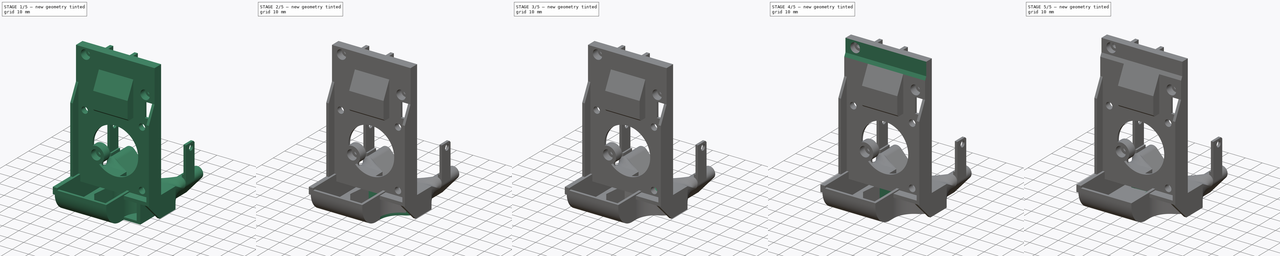
[diagram: build sequence overview — one tinted view per stage of 5, left to right]
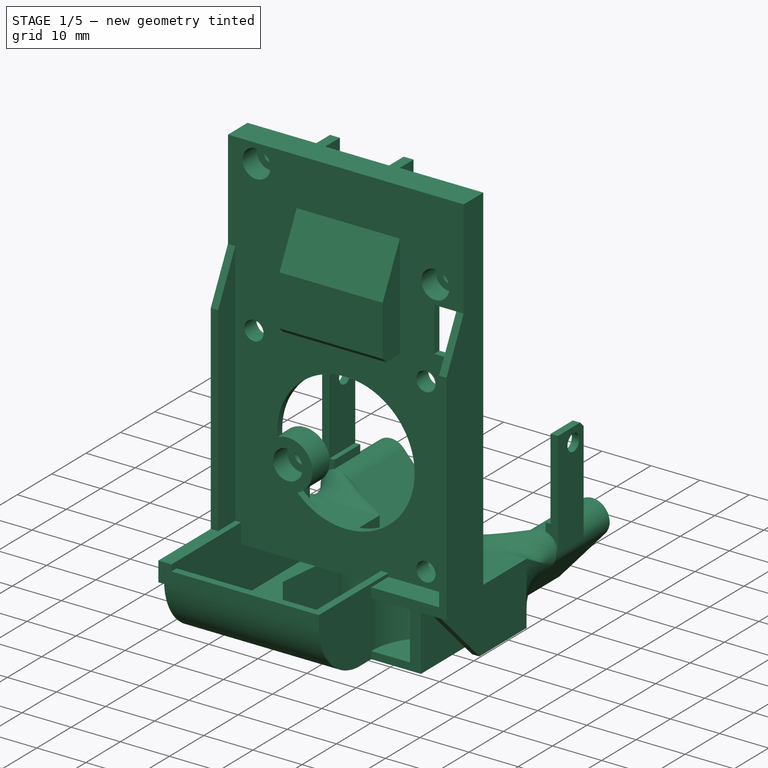
[diagram: stage 1 of 5 — iso view after this stage's code; geometry added in this stage tinted green]
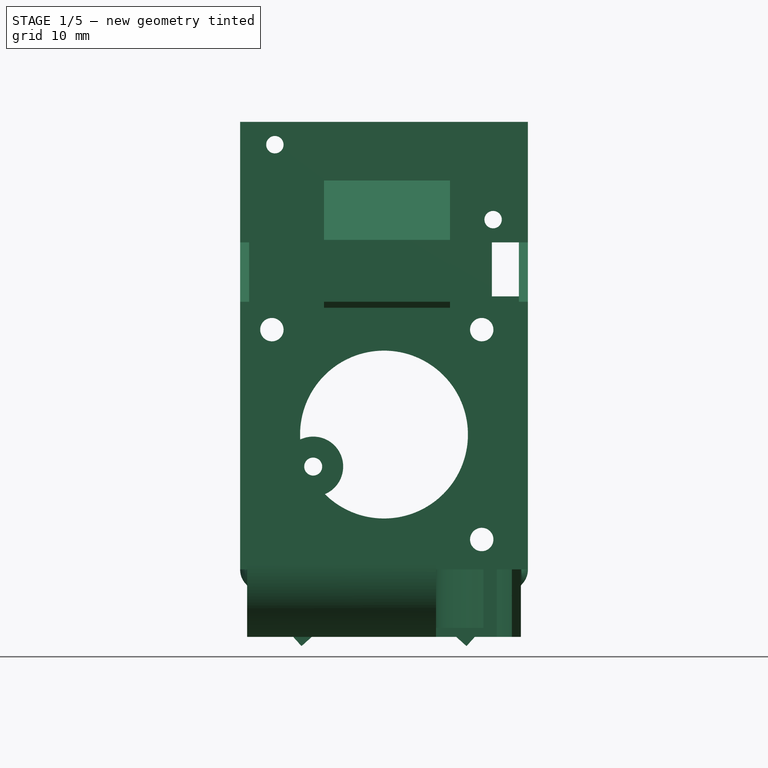
[diagram: stage 1 of 5 — front view after this stage's code; geometry added in this stage tinted green]
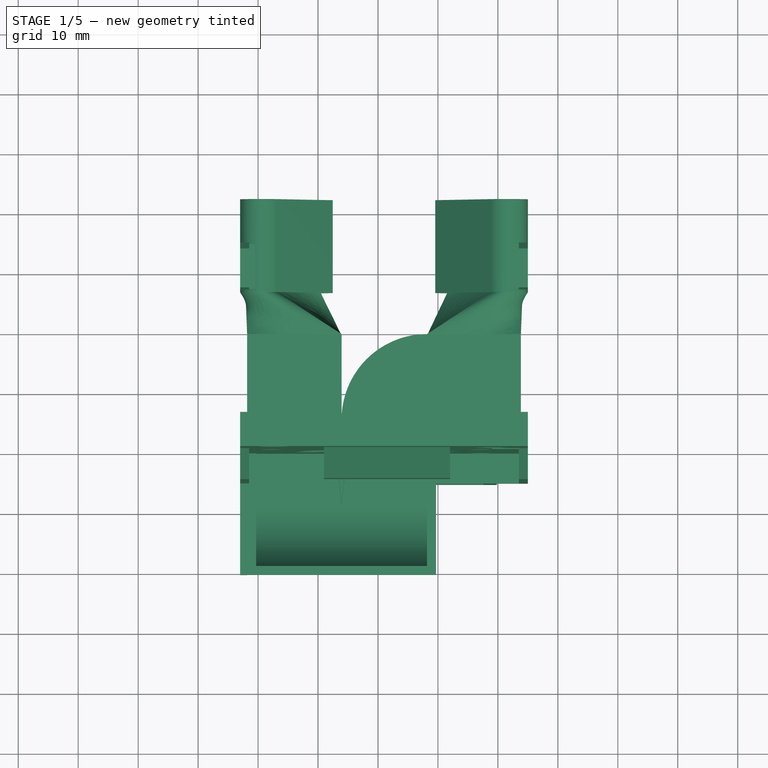
[diagram: stage 1 of 5 — top view after this stage's code; geometry added in this stage tinted green]
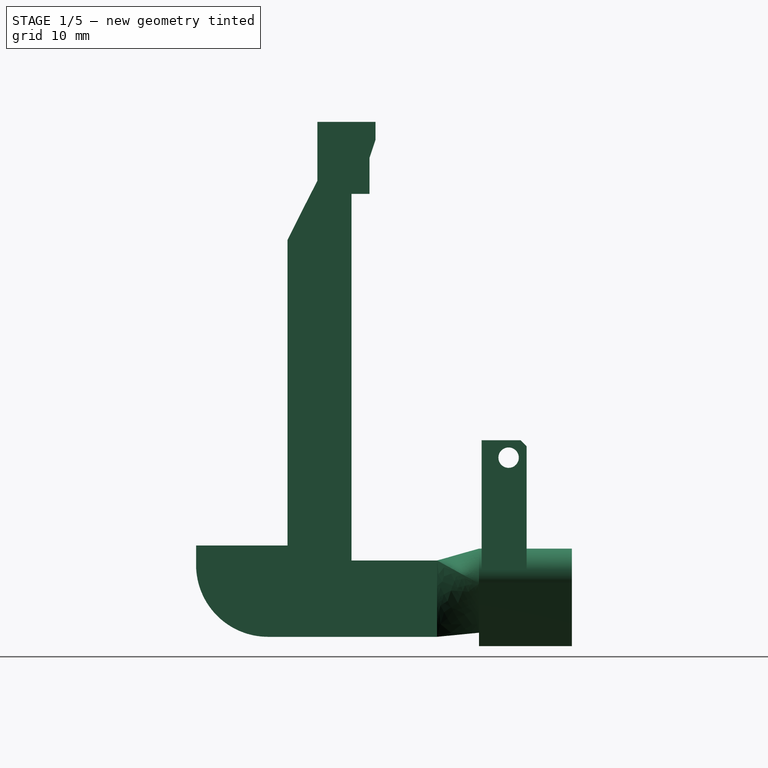
[diagram: stage 1 of 5 — right view after this stage's code; geometry added in this stage tinted green]
FCSTD DOCUMENT  (FreeCAD 1.0R38641 +678 (Git))
Label: k1_toolhead_cover_experimental
License: All rights reserved
LicenseURL: https://en.wikipedia.org/wiki/All_rights_reserved
objects: Part::Feature×14, Sketcher::SketchObject×14, PartDesign::Pocket×9, PartDesign::Pad×7, App::Part×4, App::Link×2, PartDesign::Plane×2, PartDesign::Groove×2, PartDesign::FeatureBase×1, PartDesign::Body×1
note: 101 computed .brp shape members not serialized (recipe doc carries the construction recipe); baked Part::Feature solids carry a one-line shape summary decoded from their .brp
EXTERNAL_REF file=cad_4020.FCStd obj=Blower_Fan_4020_v019
EXTERNAL_REF file=k1_toolhead_cover_experimental_spacer.FCStd obj=Body

FEATURE [App::Link] Link  label="cad_4020_link"
  LinkPlacement = pos=(371.3,113.73,-351) rot=(0,0,1;1.5708rad)
  LinkedObject = -> <external cad_4020.FCStd>#Blower_Fan_4020_v019
  Placement = pos=(371.3,113.73,-351) rot=(0,0,1;1.5708rad)
FEATURE [Part::Feature] Part__Feature001  label="k1_toolhead_step"
  Placement = pos=(351.004,148.694,-103.351) rot=(0,0,1;4.71239rad)
  shape: bbox 48.4 x 62.42 x 81 mm, 177 faces (baked)
FEATURE [Part::Feature] Part__Feature002  label="ceramic-heater-mount"
  Placement = pos=(1.01e-14,1.7e-15,-0.35) rot=(0,0,1;0rad)
  shape: bbox 16.2 x 20.39 x 5.326 mm, 102 faces (baked)
FEATURE [Part::Feature] Part__Feature003  label="ceramic-heater-main-body"
  Placement = pos=(31.1686,0.4,-0.35) rot=(0,0,1;3.14159rad)
  shape: bbox 13.01 x 12.18 x 20.65 mm, 86 faces (baked)
FEATURE [Part::Feature] Part__Feature004  label="ceramic-heater-ring"
  Placement = pos=(31.1686,0.4,-0.35) rot=(0,0,1;3.14159rad)
  shape: bbox 10 x 10 x 11 mm, 4 faces (baked)
FEATURE [App::Part] ceramic_heater  label="ceramic-heater"
  Group = -> [Part__Feature002,Part__Feature003,Part__Feature004]
  Origin = -> Origin002
FEATURE [Part::Feature] Part__Feature005  label="Silicone Socks"
  Placement = pos=(1.46e-14,2.2e-15,-0.35) rot=(0,0,1;0rad)
  shape: bbox 16.92 x 23.52 x 25.39 mm, 160 faces (baked)
FEATURE [Part::Feature] Part__Feature006  label="K1-nozzle"
  Placement = pos=(29.1807,-7.41895,-0.35) rot=(0,0,1;2.61799rad)
  shape: bbox 6.934 x 6.935 x 23.33 mm, 62 faces (baked)
FEATURE [Part::Feature] Part__Feature007  label="Heat-brake"
  Placement = pos=(0.0767342,-1.3575,-0.35) rot=(0,0,1;0.087266rad)
  shape: bbox 6.921 x 6.922 x 19.53 mm, 29 faces (baked)
FEATURE [Part::Feature] Part__Feature008  label="M2 x 22 mm SBHC"
  Placement = pos=(15.5843,7.2,9.9) rot=(1,0,0;3.14159rad)
  shape: bbox 3.8 x 3.8 x 24 mm, 21 faces (baked)
FEATURE [Part::Feature] Part__Feature009  label="M2 x 22 mm SBHC001"
  Placement = pos=(15.5843,-6.8,9.9) rot=(1,0,0;3.14159rad)
  shape: bbox 3.8 x 3.8 x 24 mm, 21 faces (baked)
FEATURE [Part::Feature] Part__Feature010  label="PTFE tubes"
  shape: bbox 4 x 4 x 13 mm, 4 faces (baked)
FEATURE [Part::Feature] Part__Feature011  label="PTFE tubes001"
  shape: bbox 4 x 4 x 13 mm, 4 faces (baked)
FEATURE [App::Part] PTFE_tubes002  label="PTFE tubes002"
  Group = -> [Part__Feature010,Part__Feature011]
  Origin = -> Origin003
FEATURE [Part::Feature] Part__Feature012  label="M4 x 4mm grub screw"
  Placement = pos=(10.6102,0.2,8.11667) rot=(0,0,1;3.14159rad)
  shape: bbox 4 x 4 x 4 mm, 18 faces (baked)
FEATURE [Part::Feature] Part__Feature013  label="SOLID"
  shape: bbox 21 x 27.8 x 24.1 mm, 230 faces (baked)
FEATURE [App::Part] cad_hotend  label="cad hotend_link"
  Group = -> [ceramic_heater,Part__Feature005,Part__Feature006,Part__Feature007,Part__Feature008,Part__Feature009,PTFE_tubes002,Part__Feature012,Part__Feature013]
  Origin = -> Origin004
  Placement = pos=(350.804,148.678,-103.401) rot=(0,0,1;4.71239rad)
FEATURE [Part::Feature] Part__Feature  label="step"
  shape: bbox 48.7 x 62.72 x 87.43 mm, 165 faces (baked)
FEATURE [PartDesign::FeatureBase] BaseFeature
  BaseFeature = -> Part__Feature
  Suppressed = false
FEATURE [Sketcher::SketchObject] Sketch
  ArcFitTolerance = 1e-06
  AttachmentSupport = -> [BaseFeature]
  ExternalGeometry = -> [BaseFeature]
  FullyConstrained = true
  MakeInternals = false
  MapMode = 5
  Placement = pos=(-1.13443e-11,1.4794e-12,-1.23535) rot=(1,0,0;3.14159rad)
  sketch-geometry (4):
    g0: LineSegment StartX=272.338 StartY=-64.8746 StartZ=0 EndX=258.183 EndY=-64.8746 EndZ=0
    g1: LineSegment StartX=258.183 StartY=-64.8746 StartZ=0 EndX=258.183 EndY=-78.3846 EndZ=0
    g2: LineSegment StartX=258.183 StartY=-78.3846 StartZ=0 EndX=272.338 EndY=-78.3846 EndZ=0
    g3: LineSegment StartX=272.338 StartY=-78.3846 StartZ=0 EndX=272.338 EndY=-64.8746 EndZ=0
  constraints (11):
    c: Coincident(g0,g1)
    c: Coincident(g1,g2)
    c: Coincident(g2,g3)
    c: Coincident(g3,g0)
    c: Horizontal(g0)
    c: Horizontal(g2)
    c: Vertical(g1)
    c: Vertical(g3)
    c: Coincident(g0,g-3)
    c: Distance(g-3,g0) = 1.5
    c: Distance(g3,g3) = 13.51
FEATURE [PartDesign::Pocket] Pocket
  BaseFeature = -> BaseFeature
  Direction = (9.1831e-12,-1.1975e-12,1)
  Length = 0
  Length2 = 5
  Profile = -> Sketch
  ReferenceAxis = -> Sketch [N_Axis]
  Refine = true
  Suppressed = false
  Type = 3
  UpToFace = -> BaseFeature [Face125]
FEATURE [PartDesign::Pad] Pad
  BaseFeature = -> Pocket
  Direction = (0,-1,-1.1975e-12)
  Length = 10
  Length2 = 10
  Profile = -> Pocket [Face85]
  Refine = true
  Suppressed = false
  Type = 3
  UpToFace = -> Pocket [Face83]
FEATURE [Sketcher::SketchObject] Sketch001
  ArcFitTolerance = 1e-06
  AttachmentSupport = -> [Pad]
  ExternalGeometry = -> [Pad]
  FullyConstrained = true
  MakeInternals = false
  MapMode = 5
  Placement = pos=(-1.12613e-11,1.2372e-12,-1.23535) rot=(1,0,0;3.14159rad)
  sketch-geometry (6):
    g0: ArcOfCircle CenterX=271.921 CenterY=-64.8746 CenterZ=0 NormalX=0 NormalY=0 NormalZ=1 AngleXU=0 Radius=12.2386 StartAngle=3.14159 EndAngle=4.22794
    g1: ArcOfCircle CenterX=259.583 CenterY=-88.3196 CenterZ=0 NormalX=0 NormalY=0 NormalZ=1 AngleXU=0 Radius=14.255 StartAngle=0.771133 EndAngle=1.08635
    g2: LineSegment StartX=259.683 StartY=-64.8746 StartZ=0 EndX=258.183 EndY=-64.8746 EndZ=0
    g3: LineSegment StartX=269.805 StartY=-78.3846 StartZ=0 EndX=268.729 EndY=-79.4301 EndZ=0
    g4: ArcOfCircle CenterX=271.921 CenterY=-64.8746 CenterZ=0 NormalX=0 NormalY=0 NormalZ=1 AngleXU=0 Radius=13.7386 StartAngle=3.14159 EndAngle=4.22794
    g5: ArcOfCircle CenterX=259.583 CenterY=-88.3196 CenterZ=0 NormalX=0 NormalY=0 NormalZ=1 AngleXU=0 Radius=12.755 StartAngle=0.771133 EndAngle=1.08635
  constraints (15):
    c: Coincident(g0,g-4)
    c: Tangent(g0,g-3) = 1.5708
    c: Coincident(g1,g-3)
    c: Tangent(g1,g0) = 1.5708
    c: Coincident(g2,g0)
    c: Horizontal(g2)
    c: Coincident(g3,g1)
    c: Perpendicular(g1,g3)
    c: Coincident(g4,g0)
    c: Coincident(g4,g2)
    c: Coincident(g5,g1)
    c: Coincident(g5,g3)
    c: Equal(g2,g3)
    c: Tangent(g5,g4) = 1.5708
    c: Distance(g2,g2) = 1.5
FEATURE [PartDesign::Pad] Pad001
  BaseFeature = -> Pad
  Direction = (-9.1158e-12,1.0015e-12,-1)
  Length = 10
  Length2 = 10
  Profile = -> Sketch001
  ReferenceAxis = -> Sketch001 [N_Axis]
  Refine = true
  Suppressed = false
  Type = 3
  UpToFace = -> Pad [Face55]
FEATURE [PartDesign::Body] Body  label="k1_toolhead_cover_experimental"
  AllowCompound = false
  BaseFeature = -> Part__Feature
  Group = -> [BaseFeature,Sketch,Pocket,Pad,Sketch001,Pad001,Sketch002,Pocket001,Sketch003,Pocket002,Sketch004,Pad002,Pad003,Pad004,DatumPlane,Pad005,Sketch005,Groove,Sketch006,Groove001,Pocket003,Sketch007,Pocket004,Sketch008,DatumPlane001,Sketch009,Pad006,Sketch010,Pocket005,Sketch011,Pocket006,Sketch012,Pocket007,Sketch013,Pocket008]
  Origin = -> Origin
  Tip = -> Pocket008
FEATURE [App::Part] Part  label="k1_toolhead_cover_experimental_part"
  Group = -> [Link,Part__Feature,Body,Link001]
  Origin = -> Origin001
  Placement = pos=(99.8016,29.1291,-123.001) rot=(0,0,1;0rad)

RESOLVED EXTERNAL PARTS (link-assembly join: the EXTERNAL_REF files above that resolve inside this repo's crawl, each included once):
---- part k1_toolhead_cover_experimental_spacer.FCStd = doc fcstd_321ecb824873 ----
FCSTD DOCUMENT  (FreeCAD 1.0R38641 +468 (Git))
Label: k1_toolhead_cover_experimental_spacer
License: All rights reserved
LicenseURL: https://en.wikipedia.org/wiki/All_rights_reserved
objects: Sketcher::SketchObject×1, PartDesign::Pad×1, PartDesign::Body×1
note: 6 computed .brp shape members not serialized (recipe doc carries the construction recipe); baked Part::Feature solids carry a one-line shape summary decoded from their .brp

FEATURE [Sketcher::SketchObject] Sketch
  ArcFitTolerance = 1e-06
  AttachmentSupport = -> [XY_Plane]
  FullyConstrained = true
  MakeInternals = false
  MapMode = 5
  sketch-geometry (2):
    g0: Circle CenterX=0 CenterY=0 CenterZ=0 NormalX=0 NormalY=0 NormalZ=1 AngleXU=0 Radius=1.55
    g1: Circle CenterX=0 CenterY=0 CenterZ=0 NormalX=0 NormalY=0 NormalZ=1 AngleXU=0 Radius=2.75
  constraints (4):
    c: Coincident(g0,g-1)
    c: Coincident(g1,g0)
    c: Diameter(g0) = 3.1
    c: Diameter(g1) = 5.5
FEATURE [PartDesign::Pad] Pad
  Direction = (0,0,1)
  Length = 9
  Length2 = 10
  Profile = -> Sketch
  ReferenceAxis = -> Sketch [N_Axis]
  Refine = true
  Suppressed = false
  Type = 0
FEATURE [PartDesign::Body] Body  label="k1_toolhead_cover_experimental_spacer"
  AllowCompound = false
  Group = -> [Sketch,Pad]
  Origin = -> Origin
  Tip = -> Pad
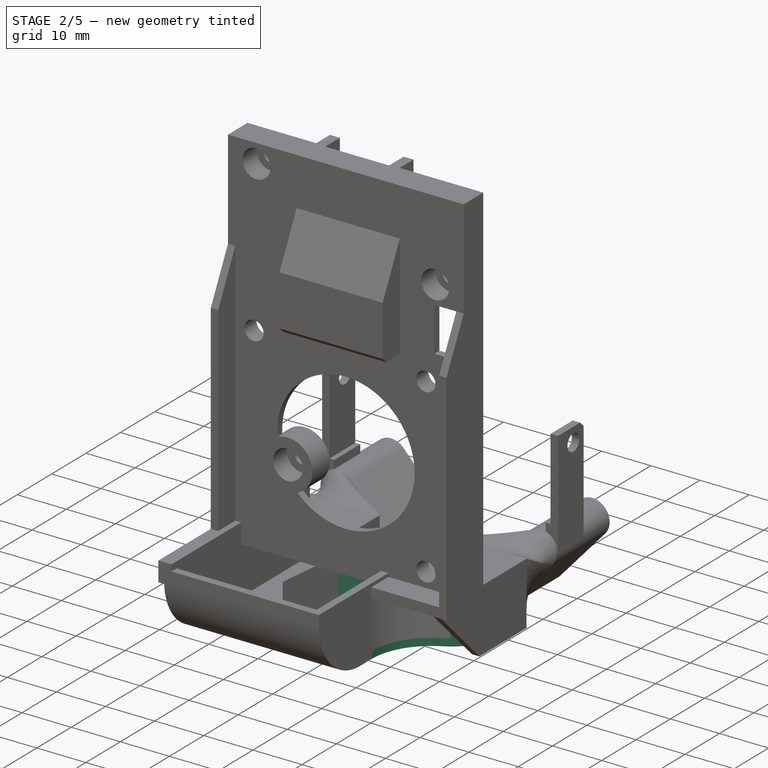
[diagram: stage 2 of 5 — iso view after this stage's code; geometry added in this stage tinted green]
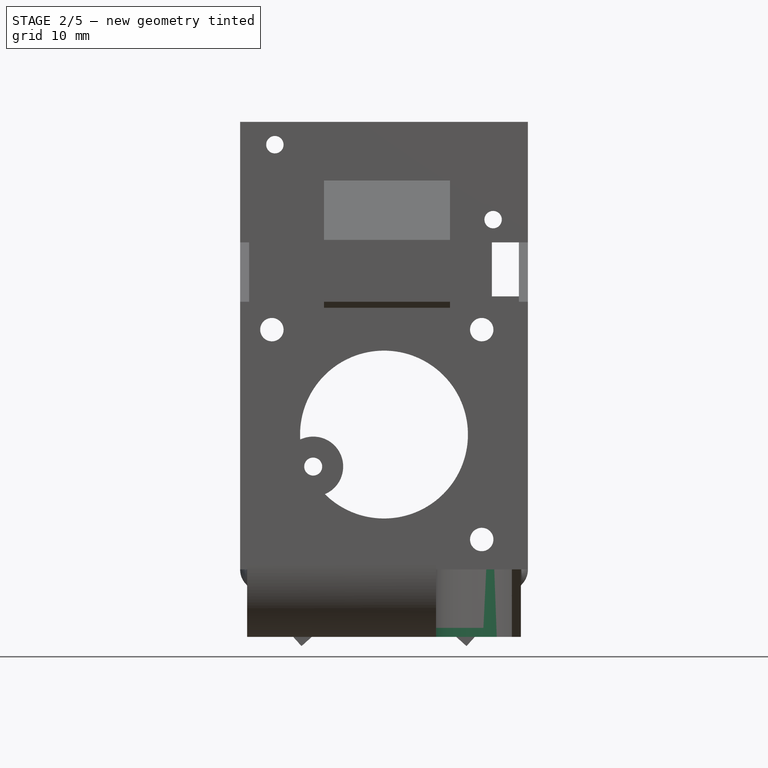
[diagram: stage 2 of 5 — front view after this stage's code; geometry added in this stage tinted green]
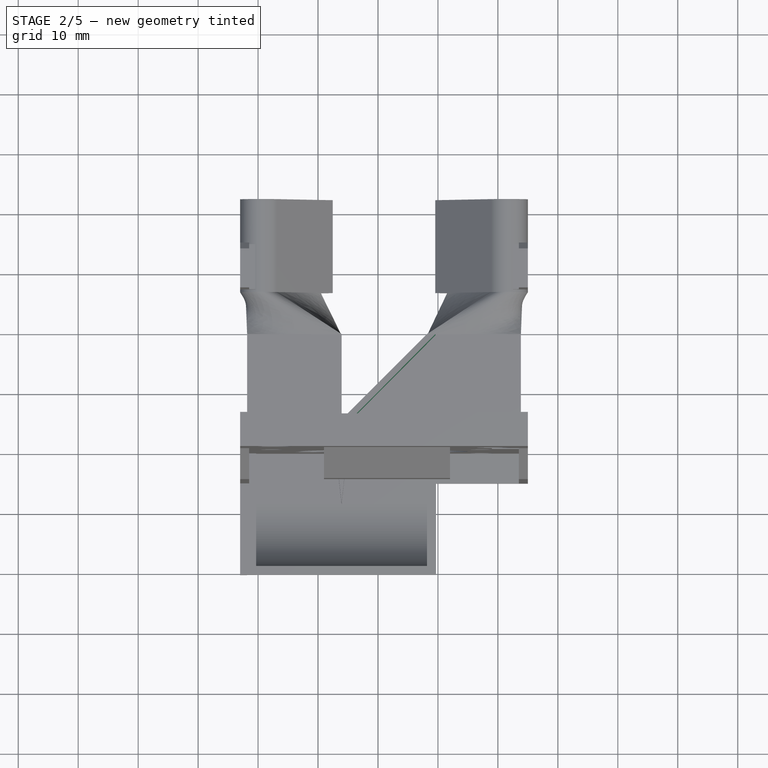
[diagram: stage 2 of 5 — top view after this stage's code; geometry added in this stage tinted green]
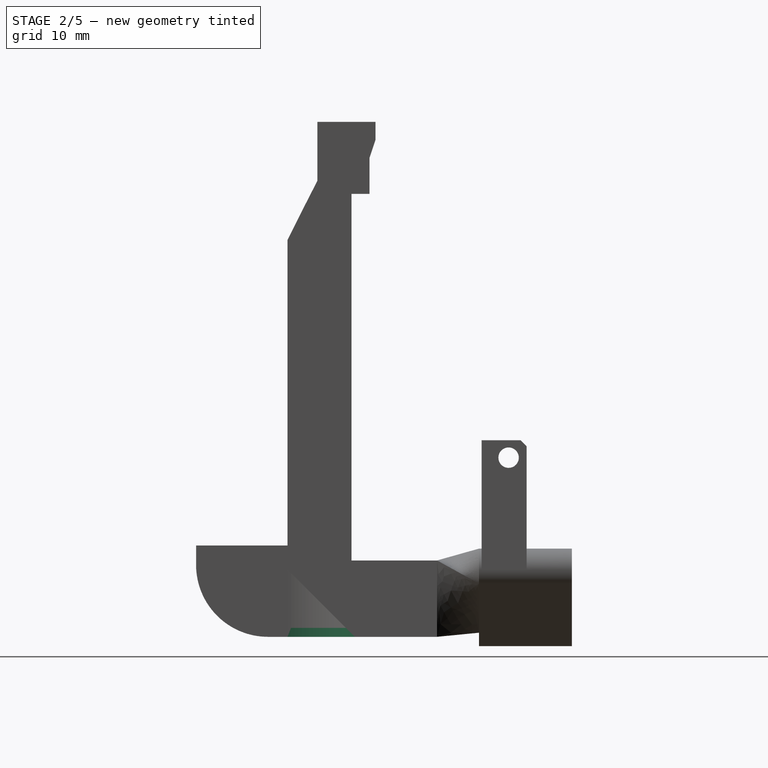
[diagram: stage 2 of 5 — right view after this stage's code; geometry added in this stage tinted green]
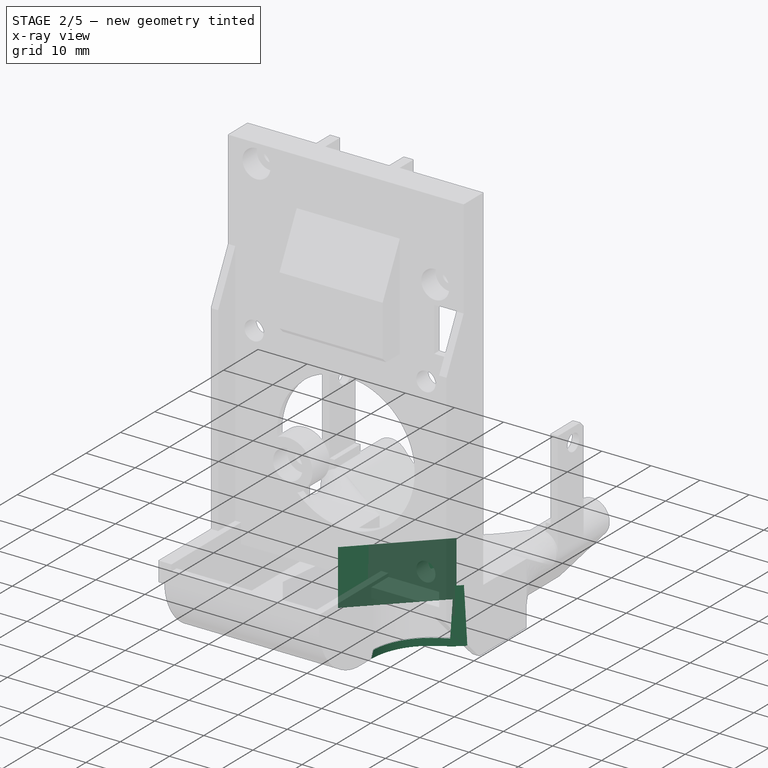
[diagram: stage 2 of 5 — x-ray composite at the iso view; earlier geometry ghosted, this stage's added geometry solid]
FEATURE [Sketcher::SketchObject] Sketch002
  ArcFitTolerance = 1e-06
  AttachmentSupport = -> [Pad001]
  ExternalGeometry = -> [Pad001]
  FullyConstrained = true
  MakeInternals = false
  MapMode = 5
  Placement = pos=(-1.12613e-11,1.2372e-12,-1.23535) rot=(1,0,0;3.14159rad)
  sketch-geometry (4):
    g0: LineSegment StartX=259.683 StartY=-64.8746 StartZ=0 EndX=269.805 EndY=-64.8746 EndZ=0
    g1: LineSegment StartX=269.805 StartY=-78.3846 StartZ=0 EndX=269.805 EndY=-64.8746 EndZ=0
    g2: ArcOfCircle CenterX=271.921 CenterY=-64.8746 CenterZ=0 NormalX=0 NormalY=0 NormalZ=1 AngleXU=0 Radius=12.2386 StartAngle=3.1416 EndAngle=4.22794
    g3: ArcOfCircle CenterX=259.583 CenterY=-88.3197 CenterZ=0 NormalX=0 NormalY=0 NormalZ=1 AngleXU=0 Radius=14.2551 StartAngle=0.771134 EndAngle=1.08635
  constraints (9):
    c: Coincident(g0,g-7)
    c: Coincident(g0,g-5)
    c: Coincident(g1,g-6)
    c: Coincident(g1,g0)
    c: Coincident(g2,g0)
    c: Coincident(g3,g1)
    c: Tangent(g3,g-6)
    c: Coincident(g2,g-7)
    c: Tangent(g3,g2) = 1.5708
FEATURE [PartDesign::Pocket] Pocket001
  BaseFeature = -> Pad001
  Direction = (9.1158e-12,-1.0015e-12,1)
  Length = 0
  Length2 = 5
  Profile = -> Sketch002
  ReferenceAxis = -> Sketch002 [N_Axis]
  Refine = true
  Suppressed = false
  Type = 3
  UpToFace = -> Pad001 [Face130]
FEATURE [Sketcher::SketchObject] Sketch003
  ArcFitTolerance = 1e-06
  AttachmentSupport = -> [Pocket001]
  ExternalGeometry = -> [Pocket001]
  FullyConstrained = true
  MakeInternals = false
  MapMode = 5
  Placement = pos=(-1.12613e-11,1.2372e-12,-1.23535) rot=(1,0,0;3.14159rad)
  sketch-geometry (4):
    g0: LineSegment StartX=243.928 StartY=-75.5646 StartZ=0 EndX=243.928 EndY=-89.8196 EndZ=0
    g1: LineSegment StartX=243.928 StartY=-89.8196 StartZ=0 EndX=259.583 EndY=-89.8196 EndZ=0
    g2: LineSegment StartX=259.583 StartY=-89.8196 StartZ=0 EndX=259.583 EndY=-75.5646 EndZ=0
    g3: LineSegment StartX=259.583 StartY=-75.5646 StartZ=0 EndX=243.928 EndY=-75.5646 EndZ=0
  constraints (11):
    c: Coincident(g0,g1)
    c: Coincident(g1,g2)
    c: Coincident(g2,g3)
    c: Coincident(g3,g0)
    c: Vertical(g0)
    c: Vertical(g2)
    c: Horizontal(g1)
    c: Horizontal(g3)
    c: Coincident(g0,g-3)
    c: PointOnObject(g-3,g1)
    c: PointOnObject(g-4,g2)
FEATURE [PartDesign::Pocket] Pocket002
  BaseFeature = -> Pocket001
  Direction = (9.1158e-12,-1.0015e-12,1)
  Length = 15
  Length2 = 5
  Profile = -> Sketch003
  ReferenceAxis = -> Sketch003 [N_Axis]
  Refine = true
  Suppressed = false
  Type = 0
FEATURE [Sketcher::SketchObject] Sketch004
  ArcFitTolerance = 1e-06
  AttachmentSupport = -> [Pocket002]
  ExternalGeometry = -> [Pocket002]
  FullyConstrained = true
  MakeInternals = false
  MapMode = 5
  Placement = pos=(-1.12613e-11,1.2372e-12,-1.23535) rot=(1,0,0;3.14159rad)
  sketch-geometry (4):
    g0: LineSegment StartX=243.928 StartY=-75.5646 StartZ=0 EndX=258.183 EndY=-89.8196 EndZ=0
    g1: LineSegment StartX=259.583 StartY=-89.8196 StartZ=0 EndX=245.428 EndY=-75.5646 EndZ=0
    g2: LineSegment StartX=258.183 StartY=-89.8196 StartZ=0 EndX=259.583 EndY=-89.8196 EndZ=0
    g3: LineSegment StartX=243.928 StartY=-75.5646 StartZ=0 EndX=245.428 EndY=-75.5646 EndZ=0
  constraints (8):
    c: Coincident(g0,g-6)
    c: Coincident(g0,g-4)
    c: Coincident(g1,g-5)
    c: Coincident(g1,g-3)
    c: Coincident(g2,g0)
    c: Coincident(g2,g1)
    c: Coincident(g3,g0)
    c: Coincident(g3,g1)
FEATURE [PartDesign::Pad] Pad002
  BaseFeature = -> Pocket002
  Direction = (-9.1158e-12,1.0015e-12,-1)
  Length = 10
  Length2 = 10
  Profile = -> Sketch004
  ReferenceAxis = -> Sketch004 [N_Axis]
  Refine = true
  Reversed = true
  Suppressed = false
  Type = 3
  UpToFace = -> Pocket002 [Face73]
FEATURE [PartDesign::Pad] Pad003
  BaseFeature = -> Pad002
  Direction = (9.1158e-12,-1.0015e-12,1)
  Length = 1.5
  Length2 = 10
  Profile = -> Pad002 [Edge451,Edge302,Edge305]
  Refine = true
  Suppressed = false
  Type = 0
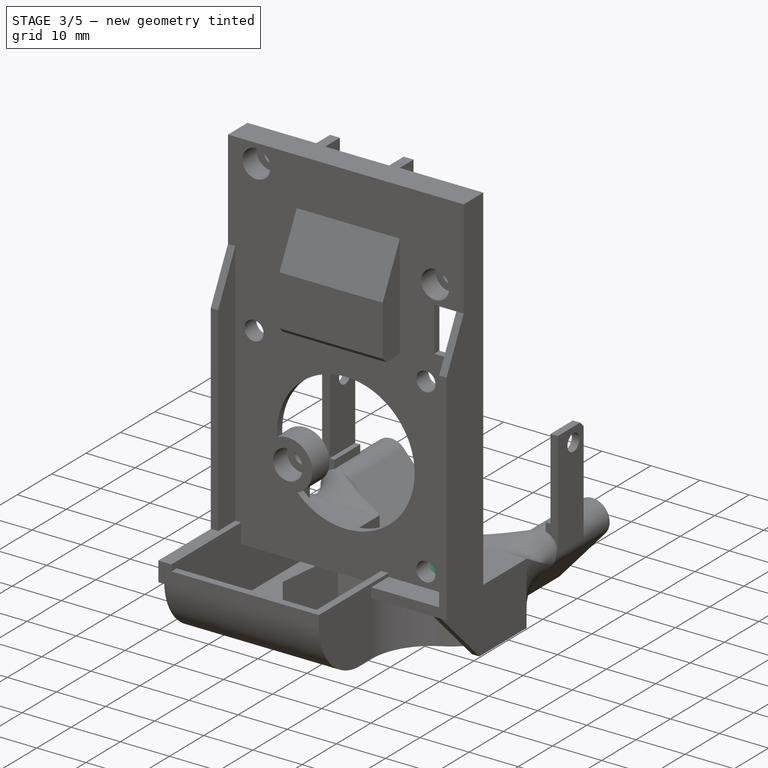
[diagram: stage 3 of 5 — iso view after this stage's code; geometry added in this stage tinted green]
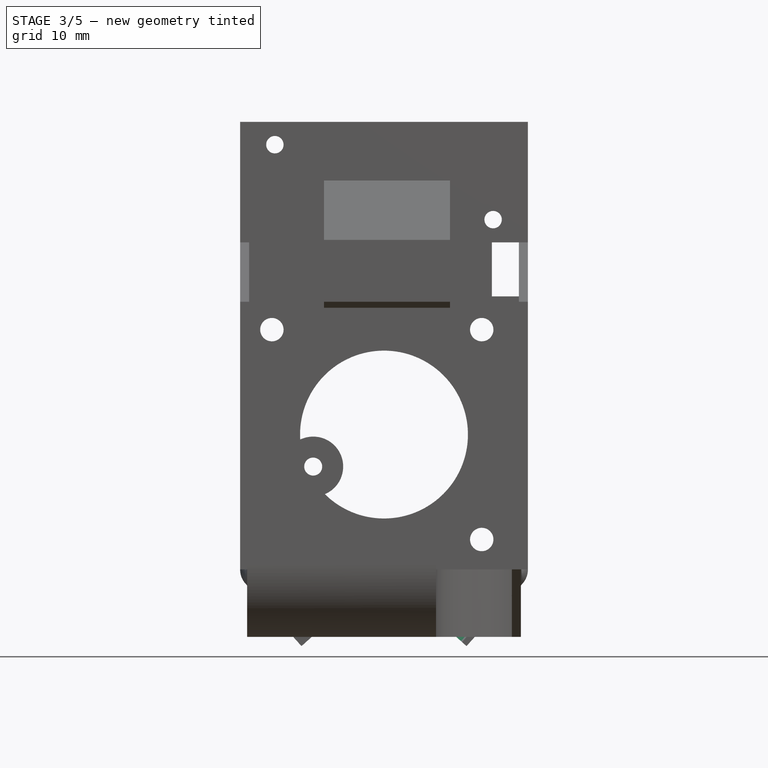
[diagram: stage 3 of 5 — front view after this stage's code; geometry added in this stage tinted green]
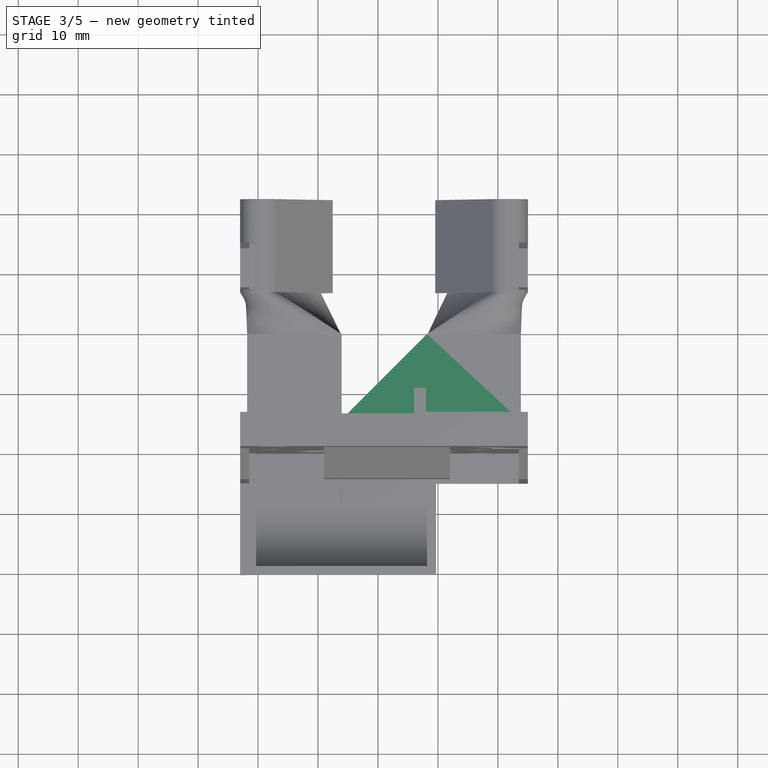
[diagram: stage 3 of 5 — top view after this stage's code; geometry added in this stage tinted green]
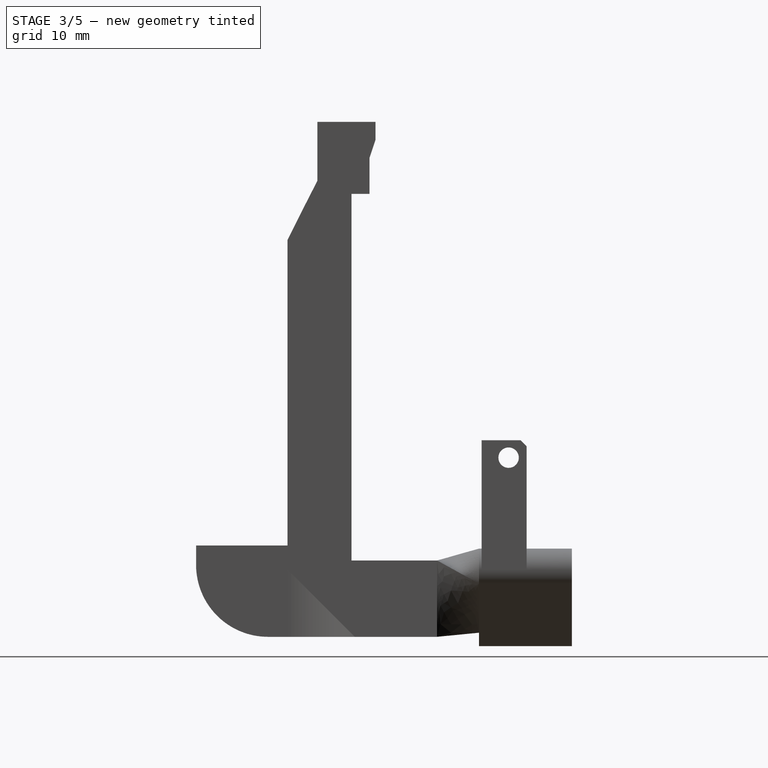
[diagram: stage 3 of 5 — right view after this stage's code; geometry added in this stage tinted green]
FEATURE [PartDesign::Pad] Pad004
  BaseFeature = -> Pad003
  Direction = (5.21e-14,5.613e-13,1)
  Length = 1.5
  Length2 = 10
  Profile = -> Pad003 [Edge294,Edge293,Edge295]
  Refine = true
  Reversed = true
  Suppressed = false
  Type = 0
FEATURE [PartDesign::Plane] DatumPlane
  AttachmentSupport = -> [Pad004]
  Length = 336.277
  MapMode = 5
  Placement = pos=(-5.131e-13,96.8196,-5.13309e-11) rot=(1,0,0;1.5708rad)
  ResizeMode = 0
  Width = 145.924
FEATURE [PartDesign::Pad] Pad005
  BaseFeature = -> Pad004
  Direction = (1.15e-14,1,-5.421e-13)
  Length = 10
  Length2 = 10
  Profile = -> Pad004 [Face11,Face156]
  Refine = true
  Suppressed = false
  Type = 3
  UpToFace = -> Pad004 [Face13]
FEATURE [Sketcher::SketchObject] Sketch005
  ArcFitTolerance = 1e-06
  AttachmentSupport = -> [DatumPlane]
  ExternalGeometry = -> [Pad005]
  FullyConstrained = true
  MakeInternals = false
  MapMode = 5
  Placement = pos=(-5.131e-13,96.8196,-5.13309e-11) rot=(1,0,0;1.5708rad)
  sketch-geometry (4):
    g0: ArcOfCircle CenterX=271.503 CenterY=9.97853 CenterZ=0 NormalX=0 NormalY=0 NormalZ=1 AngleXU=0 Radius=2.5 StartAngle=5.55241 EndAngle=8.694
    g1: LineSegment StartX=273.364 StartY=8.30991 StartZ=0 EndX=267.357 EndY=1.608 EndZ=0
    g2: LineSegment StartX=269.641 StartY=11.6471 StartZ=0 EndX=263.634 EndY=4.94523 EndZ=0
    g3: LineSegment StartX=267.357 StartY=1.608 StartZ=0 EndX=263.634 EndY=4.94523 EndZ=0
  constraints (10):
    c: Coincident(g0,g-5)
    c: Coincident(g0,g-5)
    c: Coincident(g1,g0)
    c: PointOnObject(g1,g-4)
    c: PointOnObject(g2,g-3)
    c: Coincident(g3,g1)
    c: Coincident(g3,g2)
    c: Equal(g2,g1)
    c: Tangent(g2,g0) = -1.5708
    c: Distance(g2,g2) = 9
FEATURE [PartDesign::Groove] Groove
  Angle = 180
  Angle2 = 60
  Axis = (-0.744657,3.5e-13,0.667447)
  Base = (267.357,96.8196,1.608)
  BaseFeature = -> Pad005
  Profile = -> Sketch005
  ReferenceAxis = -> Sketch005 [Edge3]
  Refine = true
  Suppressed = false
  Type = 0
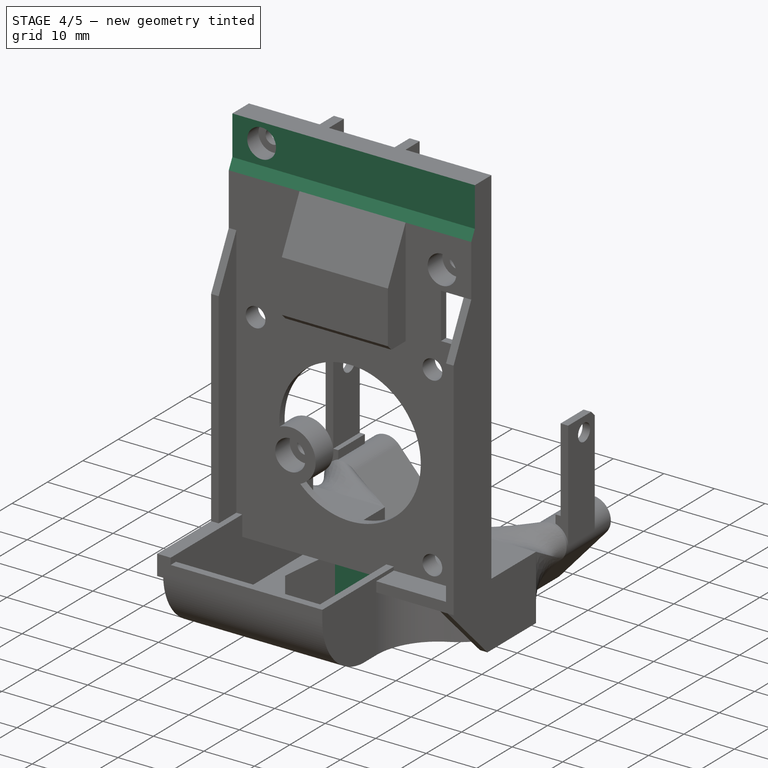
[diagram: stage 4 of 5 — iso view after this stage's code; geometry added in this stage tinted green]
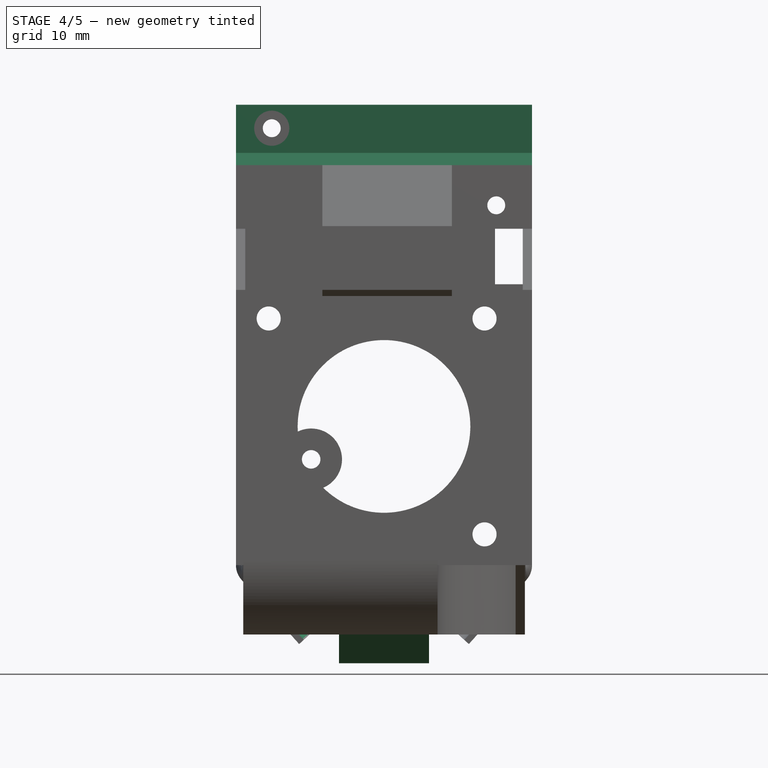
[diagram: stage 4 of 5 — front view after this stage's code; geometry added in this stage tinted green]
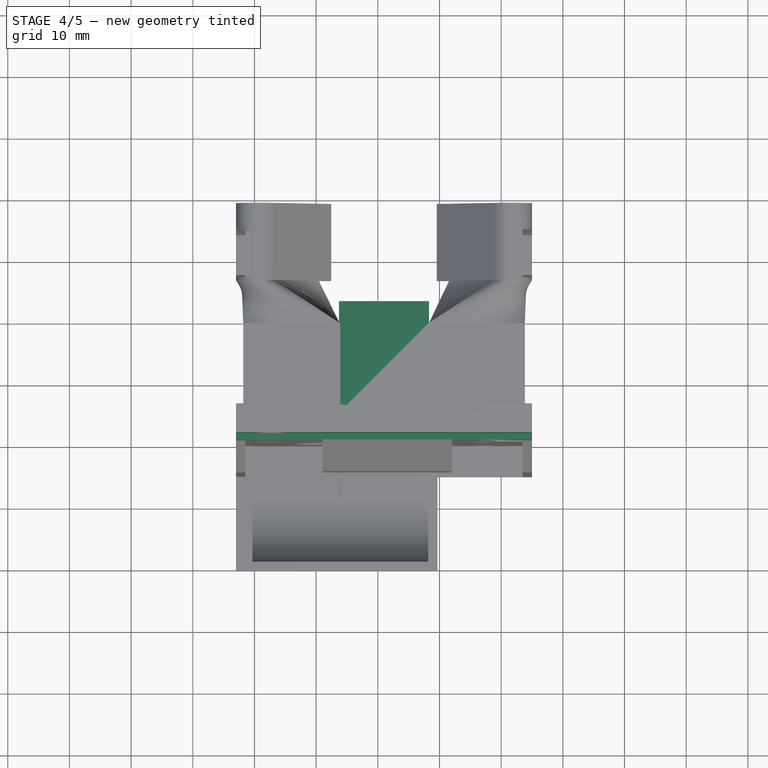
[diagram: stage 4 of 5 — top view after this stage's code; geometry added in this stage tinted green]
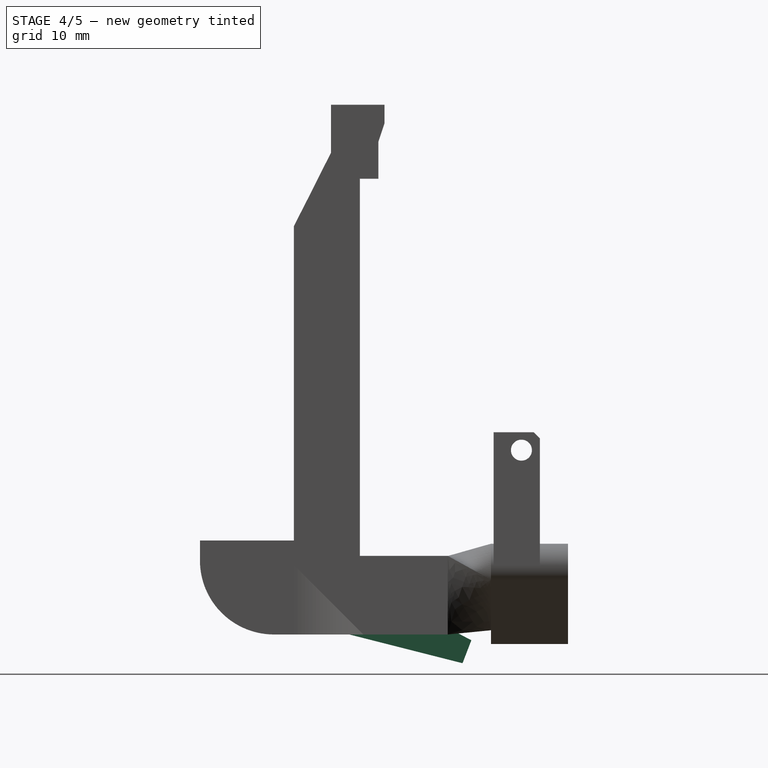
[diagram: stage 4 of 5 — right view after this stage's code; geometry added in this stage tinted green]
FEATURE [Sketcher::SketchObject] Sketch006
  ArcFitTolerance = 1e-06
  AttachmentSupport = -> [DatumPlane]
  ExternalGeometry = -> [Groove]
  FullyConstrained = true
  MakeInternals = false
  MapMode = 5
  Placement = pos=(-5.131e-13,96.8196,-5.13309e-11) rot=(1,0,0;1.5708rad)
  sketch-geometry (4):
    g0: ArcOfCircle CenterX=230.503 CenterY=9.97851 CenterZ=0 NormalX=0 NormalY=0 NormalZ=1 AngleXU=0 Radius=2.5 StartAngle=0.730775 EndAngle=3.87237
    g1: LineSegment StartX=232.364 StartY=11.6471 StartZ=0 EndX=238.371 EndY=4.94521 EndZ=0
    g2: LineSegment StartX=228.641 StartY=8.3099 StartZ=0 EndX=234.648 EndY=1.60798 EndZ=0
    g3: LineSegment StartX=234.648 StartY=1.60798 StartZ=0 EndX=238.371 EndY=4.94521 EndZ=0
  constraints (10):
    c: Coincident(g0,g-4)
    c: Coincident(g0,g-5)
    c: PointOnObject(g1,g-4)
    c: Coincident(g2,g0)
    c: PointOnObject(g2,g-5)
    c: Coincident(g3,g2)
    c: Coincident(g3,g1)
    c: Equal(g1,g2)
    c: Tangent(g1,g0) = 1.5708
    c: Distance(g1,g1) = 9
FEATURE [PartDesign::Groove] Groove001
  Angle = 180
  Angle2 = 60
  Axis = (0.744657,3.579e-13,0.667447)
  Base = (234.648,96.8196,1.60798)
  BaseFeature = -> Groove
  Profile = -> Sketch006
  ReferenceAxis = -> Sketch006 [Edge3]
  Refine = true
  Reversed = true
  Suppressed = false
  Type = 0
FEATURE [PartDesign::Pocket] Pocket003
  BaseFeature = -> Groove001
  Direction = (-1.15e-14,-1,5.421e-13)
  Length = 3
  Length2 = 5
  Profile = -> Groove001 [Face5,Face143]
  Refine = true
  Suppressed = false
  Type = 0
FEATURE [App::Link] Link001  label="k1_toolhead_cover_experimental_spacer_link"
  LinkPlacement = pos=(239.193,83.8746,27.16) rot=(1,0,0;1.5708rad)
  LinkedObject = -> <external k1_toolhead_cover_experimental_spacer.FCStd>#Body
  Placement = pos=(239.193,83.8746,27.16) rot=(1,0,0;1.5708rad)
FEATURE [Sketcher::SketchObject] Sketch007
  ArcFitTolerance = 1e-06
  AttachmentSupport = -> [Pocket003]
  ExternalGeometry = -> [Pocket003]
  FullyConstrained = true
  MakeInternals = false
  MapMode = 5
  Placement = pos=(275.003,-1.05013e-10,4.66679e-11) rot=(0.57735,0.57735,0.57735;2.0944rad)
  sketch-geometry (4):
    g0: LineSegment StartX=69.8746 StartY=74.8682 StartZ=0 EndX=70.8746 EndY=76.8482 EndZ=0
    g1: LineSegment StartX=70.8746 StartY=76.8482 StartZ=0 EndX=70.8746 EndY=84.65 EndZ=0
    g2: LineSegment StartX=70.8746 StartY=84.65 StartZ=0 EndX=69.8746 EndY=84.65 EndZ=0
    g3: LineSegment StartX=69.8746 StartY=84.65 StartZ=0 EndX=69.8746 EndY=74.8682 EndZ=0
  constraints (10):
    c: Coincident(g0,g-5)
    c: Coincident(g1,g0)
    c: PointOnObject(g1,g-3)
    c: Vertical(g1)
    c: Coincident(g2,g1)
    c: Coincident(g2,g-4)
    c: Coincident(g3,g2)
    c: Coincident(g3,g0)
    c: Parallel(g0,g-5)
    c: Distance(g0,g3) = 1
FEATURE [PartDesign::Pocket] Pocket004
  BaseFeature = -> Pocket003
  Direction = (-1,3.819e-13,-1.696e-13)
  Length = 5
  Length2 = 5
  Profile = -> Sketch007
  ReferenceAxis = -> Sketch007 [N_Axis]
  Refine = true
  Suppressed = false
  Type = 1
FEATURE [Sketcher::SketchObject] Sketch008
  ArcFitTolerance = 1e-06
  AttachmentSupport = -> [Pocket004]
  ExternalGeometry = -> [Pocket004]
  FullyConstrained = false
  MakeInternals = false
  MapMode = 5
  Placement = pos=(-1.17608e-11,2.2789e-12,-1.23535) rot=(1,0,0;3.14159rad)
  sketch-geometry (2):
    g0: LineSegment [constr] StartX=242.453 StartY=-96.8196 StartZ=0 EndX=259.552 EndY=-96.8196 EndZ=0
    g1: LineSegment StartX=251.003 StartY=-96.8196 StartZ=0 EndX=251.003 EndY=-81.9506 EndZ=0
  constraints (4):
    c: Coincident(g0,g-3)
    c: Coincident(g0,g-4)
    c: Symmetric(g0,g0,g1)
    c: Vertical(g1)
FEATURE [PartDesign::Plane] DatumPlane001
  AttachmentOffset = pos=(0,0,0) rot=(0,1,0;1.5708rad)
  AttachmentSupport = -> [Sketch008]
  Length = 158.592
  MapMode = 7
  Placement = pos=(251.003,96.8196,-1.23535) rot=(-0.57735,0.57735,0.57735;4.18879rad)
  ResizeMode = 0
  Width = 133.922
FEATURE [Sketcher::SketchObject] Sketch009
  ArcFitTolerance = 1e-06
  AttachmentSupport = -> [DatumPlane001]
  FullyConstrained = false
  MakeInternals = false
  MapMode = 5
  Placement = pos=(251.003,96.8196,-1.23535) rot=(0.57735,-0.57735,-0.57735;2.0944rad)
  sketch-geometry (6):
    g0: GeomPoint [constr] X=-7.05 Y=-7 Z=0
    g1: LineSegment StartX=3.17289 StartY=-0.924374 StartZ=0 EndX=4.60908 EndY=-4.65765 EndZ=0
    g2: LineSegment StartX=4.60908 StartY=-4.65765 StartZ=0 EndX=22.96 EndY=-1.8e-15 EndZ=0
    g3: LineSegment StartX=3.17289 StartY=-0.924374 StartZ=0 EndX=22.96 EndY=9.26 EndZ=0
    g4: LineSegment StartX=22.96 StartY=9.26 StartZ=0 EndX=22.96 EndY=-1.8e-15 EndZ=0
    g5: LineSegment [constr] StartX=3.89099 StartY=-2.79101 StartZ=0 EndX=-7.05 EndY=-7 EndZ=0
  constraints (14):
    c: Coincident(g2,g1)
    c: PointOnObject(g2,g-1)
    c: Coincident(g3,g1)
    c: Coincident(g4,g3)
    c: Coincident(g4,g2)
    c: Vertical(g4)
    c: Symmetric(g1,g1,g5)
    c: Coincident(g5,g0)
    c: Distance(g0,g-2) = 7.05
    c: Distance(g0,g-1) = 7
    c: Perpendicular(g1,g5)
    c: Distance(g1,g1) = 4
    c: Distance(g2,g-2) = 22.96
    c: DistanceY(g4,g4) = 9.26
FEATURE [PartDesign::Pad] Pad006
  BaseFeature = -> Pocket004
  Direction = (-1,0,0)
  Length = 14.6
  Length2 = 10
  Midplane = true
  Profile = -> Sketch009
  ReferenceAxis = -> Sketch009 [N_Axis]
  Refine = true
  Suppressed = false
  Type = 0
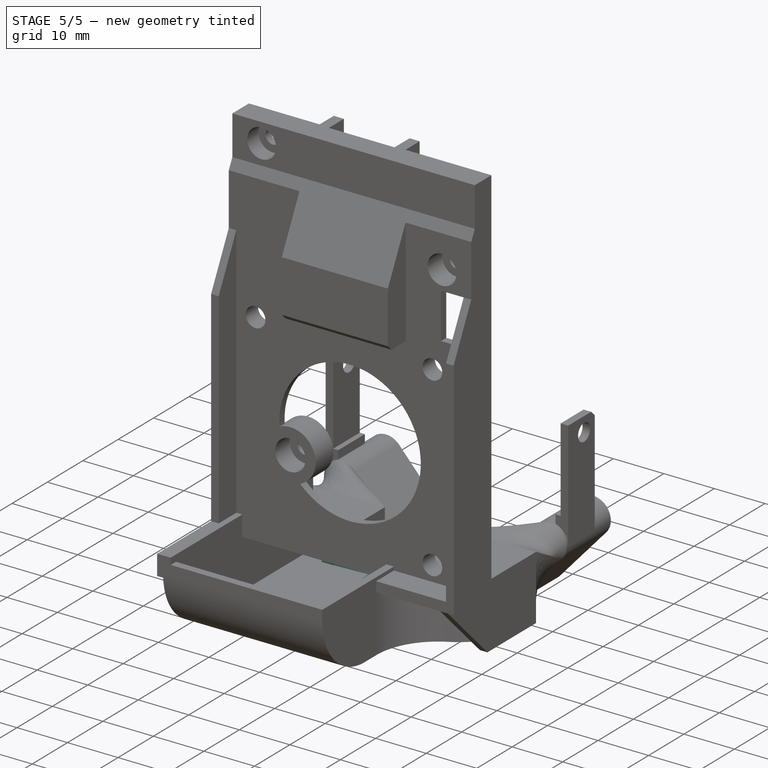
[diagram: stage 5 of 5 — iso view after this stage's code; geometry added in this stage tinted green]
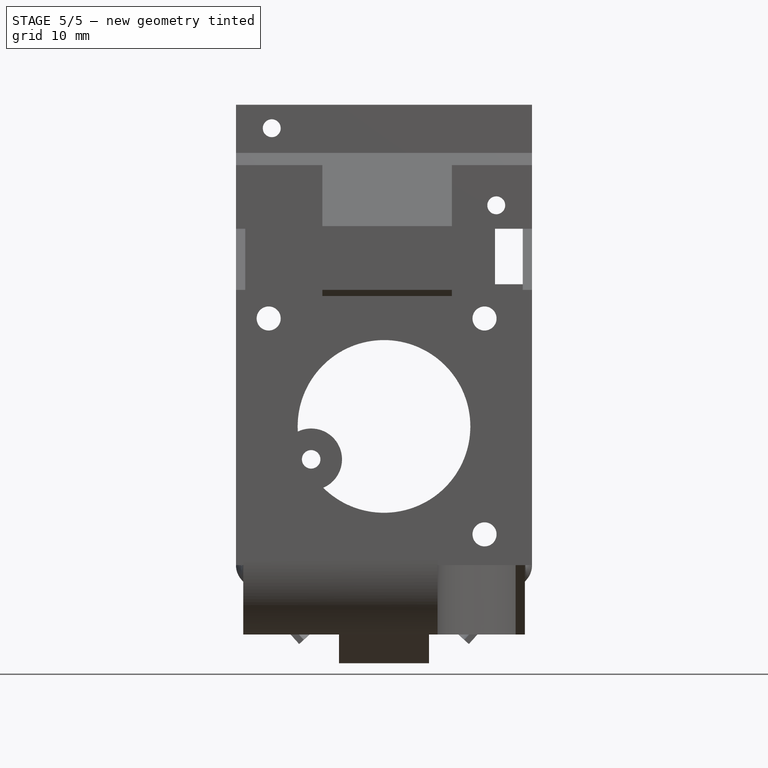
[diagram: stage 5 of 5 — front view after this stage's code; geometry added in this stage tinted green]
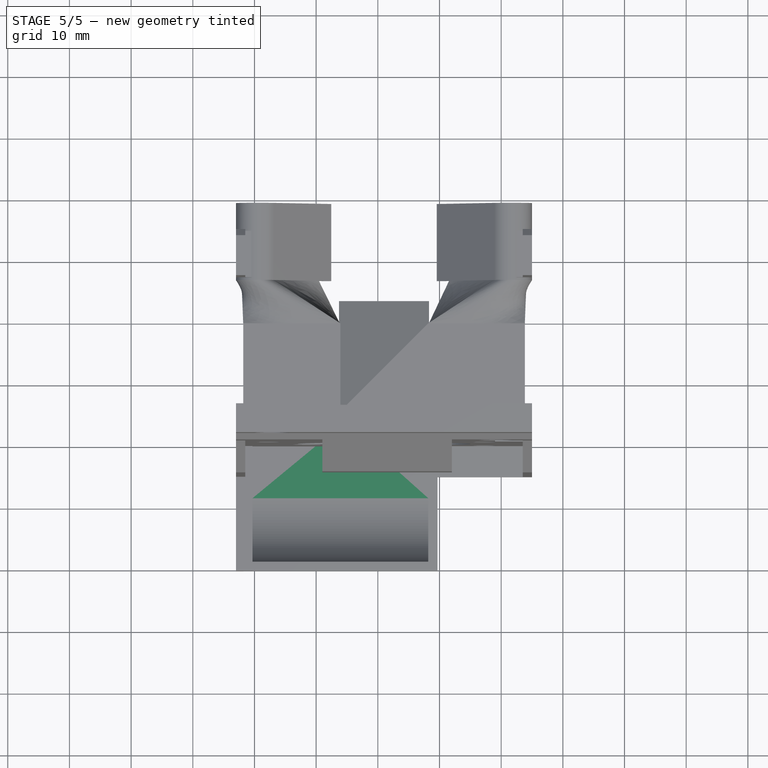
[diagram: stage 5 of 5 — top view after this stage's code; geometry added in this stage tinted green]
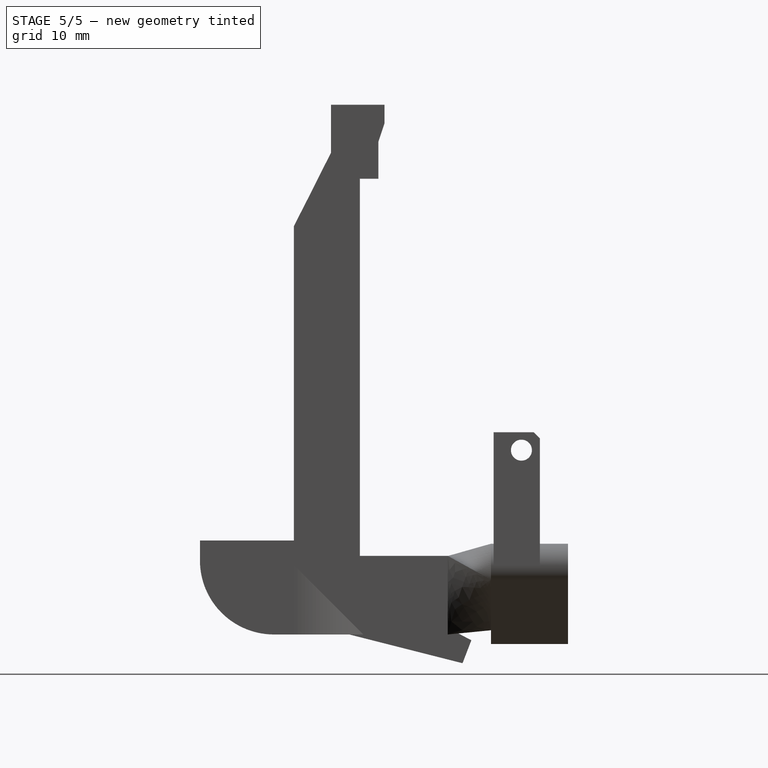
[diagram: stage 5 of 5 — right view after this stage's code; geometry added in this stage tinted green]
FEATURE [Sketcher::SketchObject] Sketch010
  ArcFitTolerance = 1e-06
  AttachmentSupport = -> [Pad006]
  ExternalGeometry = -> [Pad006]
  FullyConstrained = true
  MakeInternals = false
  MapMode = 5
  Placement = pos=(242.428,-3.4352e-12,0) rot=(-0.57735,0.57735,0.57735;4.18879rad)
  sketch-geometry (4):
    g0: LineSegment StartX=-61.6346 StartY=0.264649 StartZ=0 EndX=-61.6346 EndY=10.0046 EndZ=0
    g1: LineSegment StartX=-61.6346 StartY=10.0046 StartZ=0 EndX=-73.8596 EndY=10.0046 EndZ=0
    g2: LineSegment StartX=-73.8596 StartY=10.0046 StartZ=0 EndX=-73.8596 EndY=0.264649 EndZ=0
    g3: LineSegment StartX=-73.8596 StartY=0.264649 StartZ=0 EndX=-61.6346 EndY=0.264649 EndZ=0
  constraints (10):
    c: Coincident(g0,g1)
    c: Coincident(g1,g2)
    c: Coincident(g2,g3)
    c: Coincident(g3,g0)
    c: Vertical(g2)
    c: Horizontal(g1)
    c: Horizontal(g3)
    c: Coincident(g0,g-4)
    c: PointOnObject(g1,g-5)
    c: Coincident(g0,g-4)
FEATURE [PartDesign::Pocket] Pocket005
  BaseFeature = -> Pad006
  Direction = (1,-1.42e-14,0)
  Length = 3
  Length2 = 5
  Profile = -> Sketch010
  ReferenceAxis = -> Sketch010 [N_Axis]
  Refine = true
  Suppressed = false
  Type = 0
FEATURE [Sketcher::SketchObject] Sketch011
  ArcFitTolerance = 1e-06
  AttachmentSupport = -> [DatumPlane001]
  ExternalGeometry = -> [Pocket005]
  FullyConstrained = true
  MakeInternals = false
  MapMode = 5
  Placement = pos=(251.003,96.8196,-1.23535) rot=(0.57735,-0.57735,-0.57735;2.0944rad)
  sketch-geometry (4):
    g0: LineSegment StartX=4.42828 StartY=-4.18769 StartZ=0 EndX=22.96 EndY=1.5 EndZ=0
    g1: LineSegment StartX=22.96 StartY=1.5 StartZ=0 EndX=22.96 EndY=8.69747 EndZ=0
    g2: LineSegment StartX=3.35868 StartY=-1.40733 StartZ=0 EndX=22.96 EndY=8.69747 EndZ=0
    g3: LineSegment StartX=4.42828 StartY=-4.18769 StartZ=0 EndX=3.35868 EndY=-1.40733 EndZ=0
  constraints (11):
    c: Coincident(g1,g0)
    c: Vertical(g1)
    c: Coincident(g2,g1)
    c: PointOnObject(g2,g-4)
    c: PointOnObject(g0,g-4)
    c: Distance(g0,g-6) = 0.5
    c: Parallel(g2,g-5)
    c: Coincident(g0,g-3)
    c: Coincident(g3,g0)
    c: Coincident(g3,g2)
    c: Distance(g2,g-5) = 0.5
FEATURE [PartDesign::Pocket] Pocket006
  BaseFeature = -> Pocket005
  Direction = (1,0,0)
  Length = 13
  Length2 = 5
  Midplane = true
  Profile = -> Sketch011
  ReferenceAxis = -> Sketch011 [N_Axis]
  Refine = true
  Suppressed = false
  Type = 0
FEATURE [Sketcher::SketchObject] Sketch012
  ArcFitTolerance = 1e-06
  AttachmentSupport = -> [Pocket006]
  ExternalGeometry = -> [Pocket006]
  FullyConstrained = true
  MakeInternals = false
  MapMode = 5
  Placement = pos=(2.3694e-12,-8.483e-13,0.264649) rot=(0,0,1;0rad)
  sketch-geometry (4):
    g0: LineSegment StartX=258.303 StartY=88.5306 StartZ=0 EndX=258.303 EndY=73.8596 EndZ=0
    g1: LineSegment StartX=258.303 StartY=73.8596 StartZ=0 EndX=244.503 EndY=73.8596 EndZ=0
    g2: LineSegment StartX=244.503 StartY=73.8596 StartZ=0 EndX=244.503 EndY=74.4885 EndZ=0
    g3: LineSegment StartX=244.503 StartY=74.4885 StartZ=0 EndX=258.303 EndY=88.5306 EndZ=0
  constraints (10):
    c: Coincident(g0,g-3)
    c: Vertical(g0)
    c: Coincident(g1,g0)
    c: Coincident(g1,g-5)
    c: Horizontal(g1)
    c: Coincident(g2,g1)
    c: PointOnObject(g2,g-5)
    c: Vertical(g2)
    c: Coincident(g3,g2)
    c: Coincident(g3,g0)
FEATURE [PartDesign::Pocket] Pocket007
  BaseFeature = -> Pocket006
  Direction = (-8.953e-12,3.2055e-12,-1)
  Length = 7.6
  Length2 = 5
  Profile = -> Sketch012
  ReferenceAxis = -> Sketch012 [N_Axis]
  Refine = true
  Reversed = true
  Suppressed = false
  Type = 0
FEATURE [Sketcher::SketchObject] Sketch013
  ArcFitTolerance = 1e-06
  AttachmentSupport = -> [Pocket007]
  ExternalGeometry = -> [Pocket007]
  FullyConstrained = true
  MakeInternals = false
  MapMode = 5
  Placement = pos=(242.428,-3.4352e-12,0) rot=(-0.57735,0.57735,0.57735;4.18879rad)
  sketch-geometry (3):
    g0: LineSegment StartX=-73.8596 StartY=7.46212 StartZ=0 EndX=-73.8596 EndY=0.264649 EndZ=0
    g1: LineSegment StartX=-87.8213 StartY=0.264649 StartZ=0 EndX=-73.8596 EndY=7.46212 EndZ=0
    g2: LineSegment StartX=-87.8213 StartY=0.264649 StartZ=0 EndX=-73.8596 EndY=0.264649 EndZ=0
  constraints (8):
    c: Vertical(g0)
    c: PointOnObject(g1,g-3)
    c: Coincident(g1,g0)
    c: PointOnObject(g1,g-5)
    c: Coincident(g2,g1)
    c: Coincident(g2,g0)
    c: Horizontal(g2)
    c: Coincident(g0,g-4)
FEATURE [PartDesign::Pocket] Pocket008
  BaseFeature = -> Pocket007
  Direction = (1,-1.42e-14,0)
  Length = 5
  Length2 = 5
  Profile = -> Sketch013
  ReferenceAxis = -> Sketch013 [N_Axis]
  Refine = true
  Suppressed = false
  Type = 0
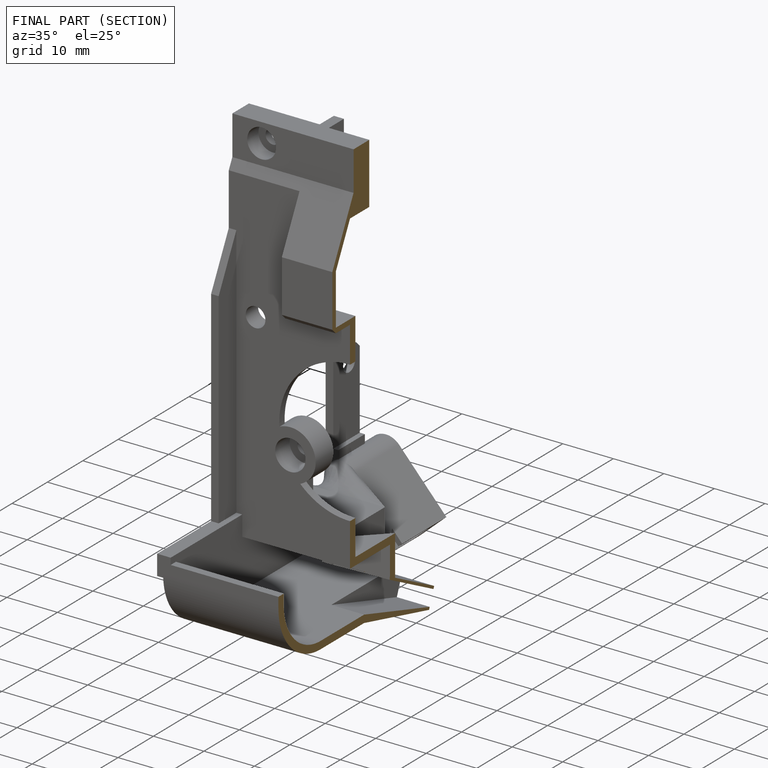
[diagram: finished part — half-section view (interior)]
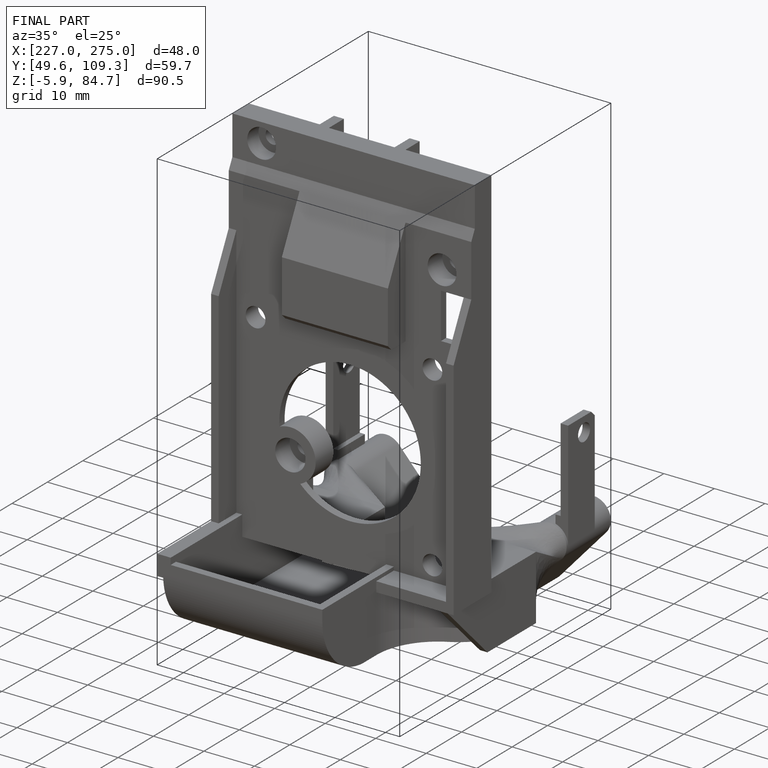
[diagram: finished part — iso view with bounding-box wireframe]
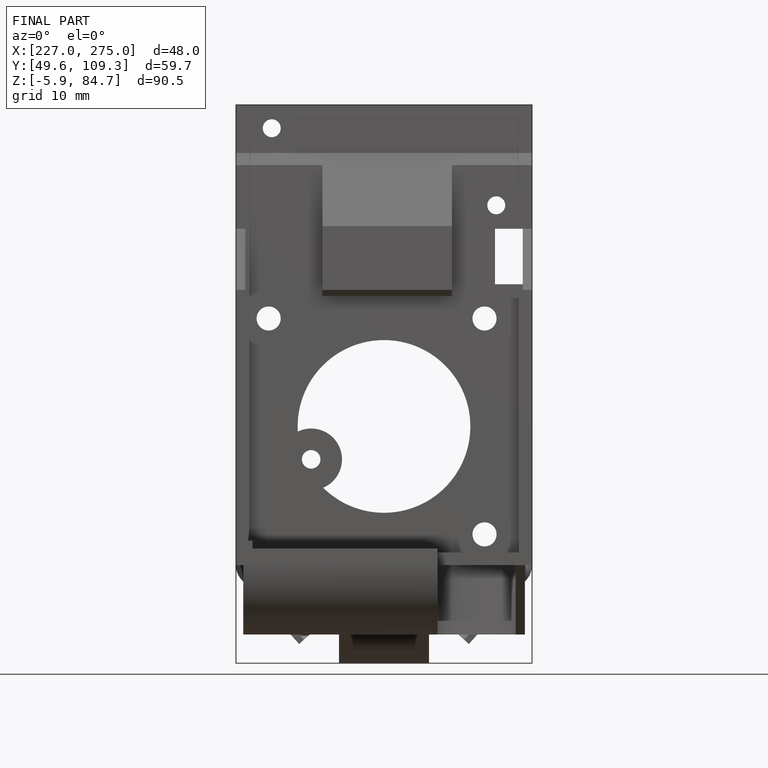
[diagram: finished part — front view with bounding-box wireframe]
